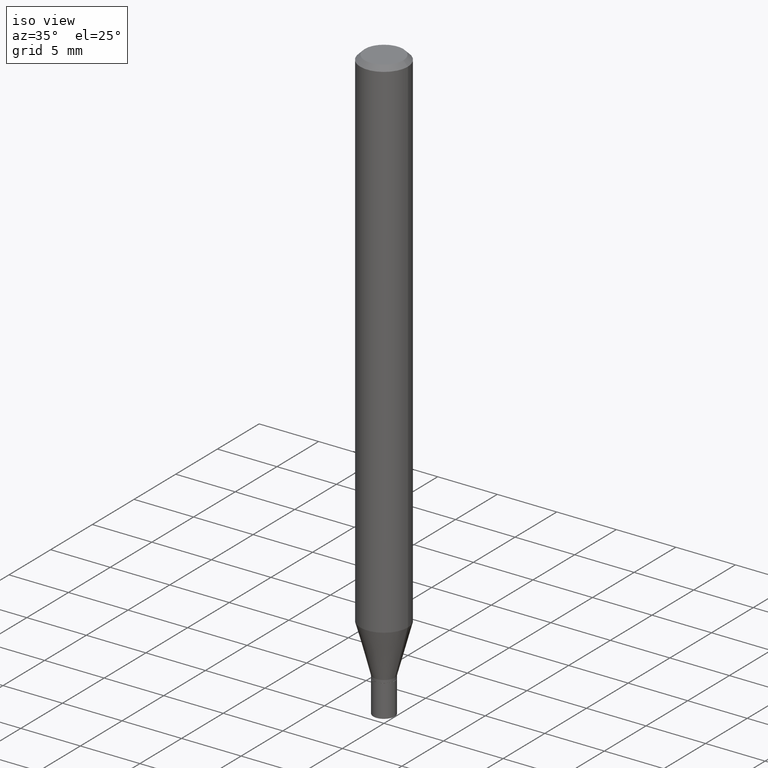
[diagram: clean part render]
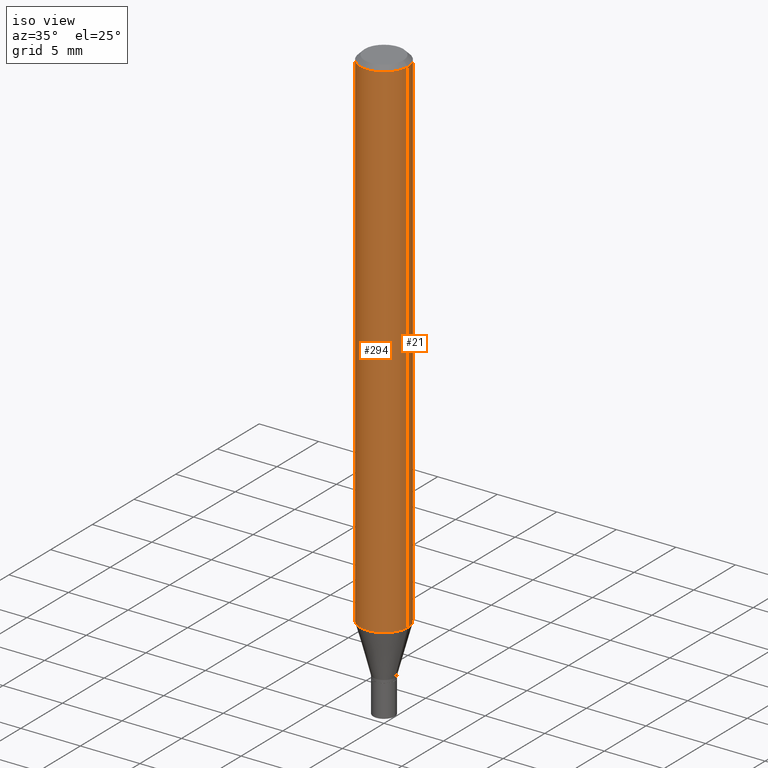
[diagram: same view with one multi-face feature highlighted, each face labeled with its STEP entity id]
A machine part, iso view. The highlighted faces form ONE feature: a constant-radius fillet chain: 2 tangent blend faces with common blend radius 2.0002 mm. The faces share edges in the B-rep.
Their STEP definitions:
[1] entity #294 (Cylinder):
#4 = CIRCLE ( 'NONE', #185, 0.07875000000000000056 ) ;
#8 = CARTESIAN_POINT ( 'NONE',  ( 3.668203209277705088E-31, -5.237222008264718399E-17, -0.01499999999999999944 ) ) ;
#13 = LINE ( 'NONE', #157, #377 ) ;
#20 = AXIS2_PLACEMENT_3D ( 'NONE', #8, #119, #403 ) ;
#23 = CARTESIAN_POINT ( 'NONE',  ( -0.07875000000000000056, -2.418510444240986285E-15, -0.01499999999999999944 ) ) ;
#33 = DIRECTION ( 'NONE',  ( -2.445468806185136597E-29, 3.491481338843145583E-15, 1.000000000000000000 ) ) ;
#40 = ORIENTED_EDGE ( 'NONE', *, *, #349, .T. ) ;
#63 = EDGE_CURVE ( 'NONE', #330, #219, #240, .T. ) ;
#82 = DIRECTION ( 'NONE',  ( -2.445468806185136877E-29, 3.491481338843145188E-15, 1.000000000000000000 ) ) ;
#119 = DIRECTION ( 'NONE',  ( -2.445468806185136597E-29, 3.491481338843145583E-15, 1.000000000000000000 ) ) ;
#126 = DIRECTION ( 'NONE',  ( -2.445468806185136597E-29, 3.491481338843145583E-15, 1.000000000000000000 ) ) ;
#129 = CARTESIAN_POINT ( 'NONE',  ( -0.07875000000000000056, 5.595524044110789003E-16, -3.873661383575737792E-30 ) ) ;
#157 = CARTESIAN_POINT ( 'NONE',  ( 0.07875000000000000056, -5.499083108677934443E-16, 3.839989210939299016E-30 ) ) ;
#185 = AXIS2_PLACEMENT_3D ( 'NONE', #228, #126, #194 ) ;
#192 = CIRCLE ( 'NONE', #20, 0.07875000000000000056 ) ;
#194 = DIRECTION ( 'NONE',  ( 1.000000000000000000, -6.982962677686261977E-15, 0.000000000000000000 ) ) ;
#203 = VECTOR ( 'NONE', #304, 39.37007874015748143 ) ;
#219 = VERTEX_POINT ( 'NONE', #23 ) ;
#225 = ORIENTED_EDGE ( 'NONE', *, *, #63, .F. ) ;
#228 = CARTESIAN_POINT ( 'NONE',  ( 4.135048584488730771E-29, -5.903753477221482700E-15, -1.690902200032267766 ) ) ;
#240 = LINE ( 'NONE', #129, #203 ) ;
#247 = AXIS2_PLACEMENT_3D ( 'NONE', #459, #33, #253 ) ;
#253 = DIRECTION ( 'NONE',  ( 1.000000000000000000, -6.982962677686265922E-15, 4.876176775795935232E-29 ) ) ;
#258 = VERTEX_POINT ( 'NONE', #313 ) ;
#263 = CARTESIAN_POINT ( 'NONE',  ( -0.07875000000000000056, -5.344201072810403898E-15, -1.690902200032267766 ) ) ;
#294 = ADVANCED_FACE ( 'NONE', ( #353 ), #307, .T. ) ;
#303 = ORIENTED_EDGE ( 'NONE', *, *, #334, .F. ) ;
#304 = DIRECTION ( 'NONE',  ( -2.445468806185136877E-29, 3.491481338843145188E-15, 1.000000000000000000 ) ) ;
#307 = CYLINDRICAL_SURFACE ( 'NONE', #247, 0.07875000000000000056 ) ;
#313 = CARTESIAN_POINT ( 'NONE',  ( 0.07875000000000000056, -6.453661788089276045E-15, -1.690902200032267766 ) ) ;
#327 = VERTEX_POINT ( 'NONE', #436 ) ;
#330 = VERTEX_POINT ( 'NONE', #263 ) ;
#334 = EDGE_CURVE ( 'NONE', #219, #327, #192, .T. ) ;
#341 = EDGE_CURVE ( 'NONE', #330, #258, #4, .T. ) ;
#349 = EDGE_CURVE ( 'NONE', #258, #327, #13, .T. ) ;
#353 = FACE_OUTER_BOUND ( 'NONE', #450, .T. ) ;
#377 = VECTOR ( 'NONE', #82, 39.37007874015748143 ) ;
#403 = DIRECTION ( 'NONE',  ( 1.000000000000000000, -6.982962677686265922E-15, 0.000000000000000000 ) ) ;
#431 = ORIENTED_EDGE ( 'NONE', *, *, #341, .T. ) ;
#436 = CARTESIAN_POINT ( 'NONE',  ( 0.07875000000000000056, -6.022805309504406221E-16, -0.01499999999999999944 ) ) ;
#450 = EDGE_LOOP ( 'NONE', ( #225, #431, #40, #303 ) ) ;
#459 = CARTESIAN_POINT ( 'NONE',  ( 0.000000000000000000, 0.000000000000000000, 0.000000000000000000 ) ) ;
[2] entity #21 (Cylinder):
#13 = LINE ( 'NONE', #157, #377 ) ;
#21 = ADVANCED_FACE ( 'NONE', ( #133 ), #337, .T. ) ;
#23 = CARTESIAN_POINT ( 'NONE',  ( -0.07875000000000000056, -2.418510444240986285E-15, -0.01499999999999999944 ) ) ;
#49 = CARTESIAN_POINT ( 'NONE',  ( 0.000000000000000000, 0.000000000000000000, 0.000000000000000000 ) ) ;
#55 = EDGE_CURVE ( 'NONE', #327, #219, #273, .T. ) ;
#63 = EDGE_CURVE ( 'NONE', #330, #219, #240, .T. ) ;
#82 = DIRECTION ( 'NONE',  ( -2.445468806185136877E-29, 3.491481338843145188E-15, 1.000000000000000000 ) ) ;
#110 = ORIENTED_EDGE ( 'NONE', *, *, #55, .F. ) ;
#122 = EDGE_LOOP ( 'NONE', ( #409, #286, #110, #204 ) ) ;
#123 = EDGE_CURVE ( 'NONE', #258, #330, #144, .T. ) ;
#129 = CARTESIAN_POINT ( 'NONE',  ( -0.07875000000000000056, 5.595524044110789003E-16, -3.873661383575737792E-30 ) ) ;
#132 = DIRECTION ( 'NONE',  ( 1.000000000000000000, -6.982962677686265922E-15, 0.000000000000000000 ) ) ;
#133 = FACE_OUTER_BOUND ( 'NONE', #122, .T. ) ;
#144 = CIRCLE ( 'NONE', #359, 0.07875000000000000056 ) ;
#157 = CARTESIAN_POINT ( 'NONE',  ( 0.07875000000000000056, -5.499083108677934443E-16, 3.839989210939299016E-30 ) ) ;
#168 = DIRECTION ( 'NONE',  ( 1.000000000000000000, -6.982962677686265922E-15, 4.876176775795935232E-29 ) ) ;
#199 = CARTESIAN_POINT ( 'NONE',  ( 4.135048584488730771E-29, -5.903753477221482700E-15, -1.690902200032267766 ) ) ;
#202 = DIRECTION ( 'NONE',  ( -2.445468806185136597E-29, 3.491481338843145583E-15, 1.000000000000000000 ) ) ;
#203 = VECTOR ( 'NONE', #304, 39.37007874015748143 ) ;
#204 = ORIENTED_EDGE ( 'NONE', *, *, #349, .F. ) ;
#219 = VERTEX_POINT ( 'NONE', #23 ) ;
#240 = LINE ( 'NONE', #129, #203 ) ;
#258 = VERTEX_POINT ( 'NONE', #313 ) ;
#263 = CARTESIAN_POINT ( 'NONE',  ( -0.07875000000000000056, -5.344201072810403898E-15, -1.690902200032267766 ) ) ;
#265 = DIRECTION ( 'NONE',  ( 1.000000000000000000, -6.982962677686261977E-15, 0.000000000000000000 ) ) ;
#273 = CIRCLE ( 'NONE', #465, 0.07875000000000000056 ) ;
#286 = ORIENTED_EDGE ( 'NONE', *, *, #63, .T. ) ;
#299 = DIRECTION ( 'NONE',  ( -2.445468806185136597E-29, 3.491481338843145583E-15, 1.000000000000000000 ) ) ;
#304 = DIRECTION ( 'NONE',  ( -2.445468806185136877E-29, 3.491481338843145188E-15, 1.000000000000000000 ) ) ;
#313 = CARTESIAN_POINT ( 'NONE',  ( 0.07875000000000000056, -6.453661788089276045E-15, -1.690902200032267766 ) ) ;
#327 = VERTEX_POINT ( 'NONE', #436 ) ;
#330 = VERTEX_POINT ( 'NONE', #263 ) ;
#335 = AXIS2_PLACEMENT_3D ( 'NONE', #49, #299, #168 ) ;
#337 = CYLINDRICAL_SURFACE ( 'NONE', #335, 0.07875000000000000056 ) ;
#349 = EDGE_CURVE ( 'NONE', #258, #327, #13, .T. ) ;
#359 = AXIS2_PLACEMENT_3D ( 'NONE', #199, #202, #265 ) ;
#374 = DIRECTION ( 'NONE',  ( -2.445468806185136597E-29, 3.491481338843145583E-15, 1.000000000000000000 ) ) ;
#377 = VECTOR ( 'NONE', #82, 39.37007874015748143 ) ;
#409 = ORIENTED_EDGE ( 'NONE', *, *, #123, .T. ) ;
#436 = CARTESIAN_POINT ( 'NONE',  ( 0.07875000000000000056, -6.022805309504406221E-16, -0.01499999999999999944 ) ) ;
#448 = CARTESIAN_POINT ( 'NONE',  ( 3.668203209277705088E-31, -5.237222008264718399E-17, -0.01499999999999999944 ) ) ;
#465 = AXIS2_PLACEMENT_3D ( 'NONE', #448, #374, #132 ) ;